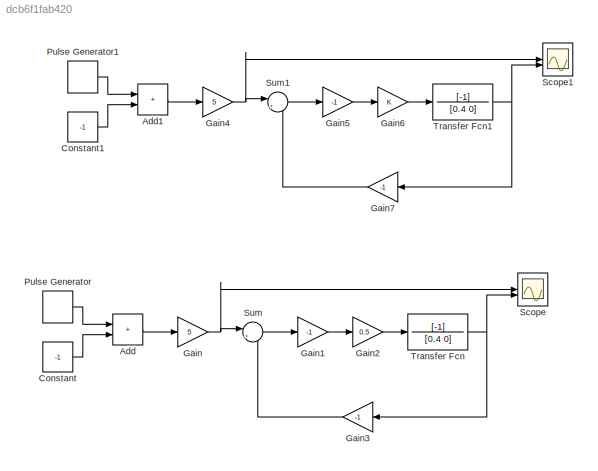
MODEL slx_dcb6f1fab420
KIND model
CONFIG AbsTol = auto
CONFIG EnableMultiTasking = off
CONFIG FixedStep = auto
CONFIG MaxStep = auto
CONFIG MinStep = auto
CONFIG RelTol = 1e-3
CONFIG SampleTimeConstraint = Unconstrained
CONFIG SolverName = VariableStepAuto
CONFIG StartTime = 0.0
CONFIG StopTime = 10.0
BLOCK [Sum] Add
  IconShape = rectangular
BLOCK [Sum] Add1
  IconShape = rectangular
BLOCK [Constant] Constant
  Value = -1
BLOCK [Constant] Constant1
  Value = -1
BLOCK [Gain] Gain
  Gain = 5
BLOCK [Gain] Gain1
  Gain = -1
BLOCK [Gain] Gain2
  Gain = 0.5
BLOCK [Gain] Gain3
  Gain = -1
  NameLocation = top
BLOCK [Gain] Gain4
  Gain = 5
BLOCK [Gain] Gain5
  Gain = -1
BLOCK [Gain] Gain6
BLOCK [Gain] Gain7
  Gain = -1
  NameLocation = top
BLOCK [DiscretePulseGenerator] Pulse Generator
  Amplitude = 2
  Period = 1/0.1
  PulseType = Time based
  PulseWidth = 50
BLOCK [DiscretePulseGenerator] Pulse Generator1
  Amplitude = 2
  Period = 1/0.1
  PulseType = Time based
  PulseWidth = 50
BLOCK [Scope] Scope
  Floating = off
  NumInputPorts = 2
  ScopeSpecificationString = Simulink.scopes.TimeScopeBlockCfg('CurrentConfiguration', extmgr.ConfigurationSet(extmgr.Configuration('Core','General UI',true),extmgr.Configuration('Core','Source UI',true),extmgr.Configuration('Sources','WiredSimulink',true),extmgr.Configuration('Visuals','Time Domain',true,'SerializedDisplays',{struct('MinYLimReal','-6.25','MaxYLimReal','6.25','YLabelReal','','MinYLimMag','0.00000','MaxYLimMag...<+1350ch>
BLOCK [Scope] Scope1
  Floating = off
  NumInputPorts = 2
  ScopeSpecificationString = Simulink.scopes.TimeScopeBlockCfg('CurrentConfiguration', extmgr.ConfigurationSet(extmgr.Configuration('Core','General UI',true),extmgr.Configuration('Core','Source UI',true),extmgr.Configuration('Sources','WiredSimulink',true,'DataLoggingVariableName','ScopeData1'),extmgr.Configuration('Visuals','Time Domain',true,'SerializedDisplays',{struct('MinYLimReal','-6.25','MaxYLimReal','6.25','YLabelReal...<+1391ch>
BLOCK [Sum] Sum
  Inputs = |++
BLOCK [Sum] Sum1
  Inputs = |++
BLOCK [TransferFcn] Transfer Fcn
  Denominator = [0.4 0]
  Numerator = [-1]
BLOCK [TransferFcn] Transfer Fcn1
  Denominator = [0.4 0]
  Numerator = [-1]
LINE Add1:1 -> Gain4:1
LINE Add:1 -> Gain:1
LINE Constant1:1 -> Add1:2
LINE Constant:1 -> Add:2
LINE Gain1:1 -> Gain2:1
LINE Gain2:1 -> Transfer Fcn:1
LINE Gain3:1 -> Sum:2
NET Gain4:1 -> Scope1:1, Sum1:1
LINE Gain5:1 -> Gain6:1
LINE Gain6:1 -> Transfer Fcn1:1
LINE Gain7:1 -> Sum1:2
NET Gain:1 -> Scope:1, Sum:1
LINE Pulse Generator1:1 -> Add1:1
LINE Pulse Generator:1 -> Add:1
LINE Sum1:1 -> Gain5:1
LINE Sum:1 -> Gain1:1
NET Transfer Fcn1:1 -> Gain7:1, Scope1:2
NET Transfer Fcn:1 -> Gain3:1, Scope:2
note: NET lines group one-source signal fan-out (src -> all destinations, sorted); 1:1 wires keep LINE
